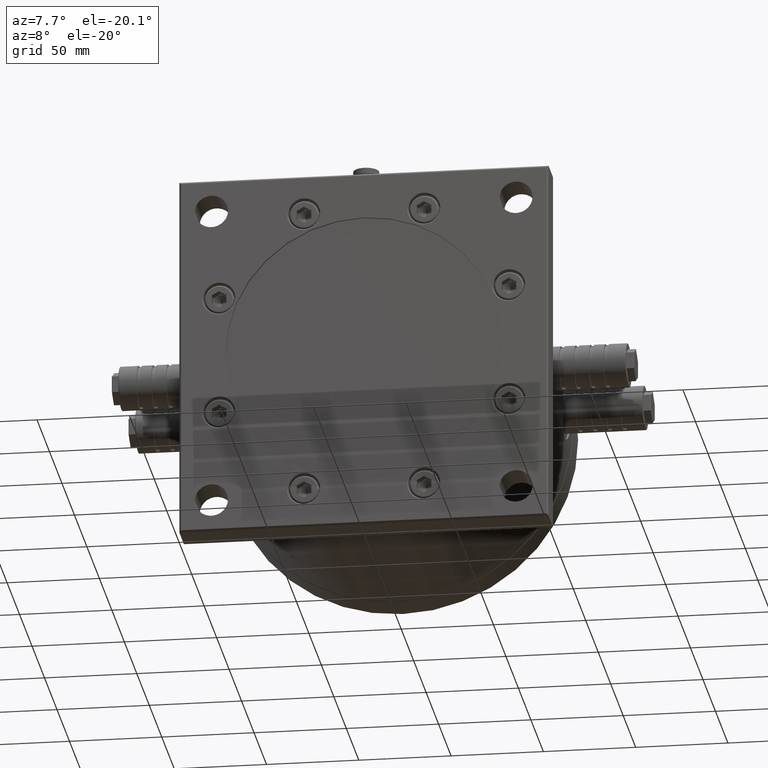
[diagram: clean part render]
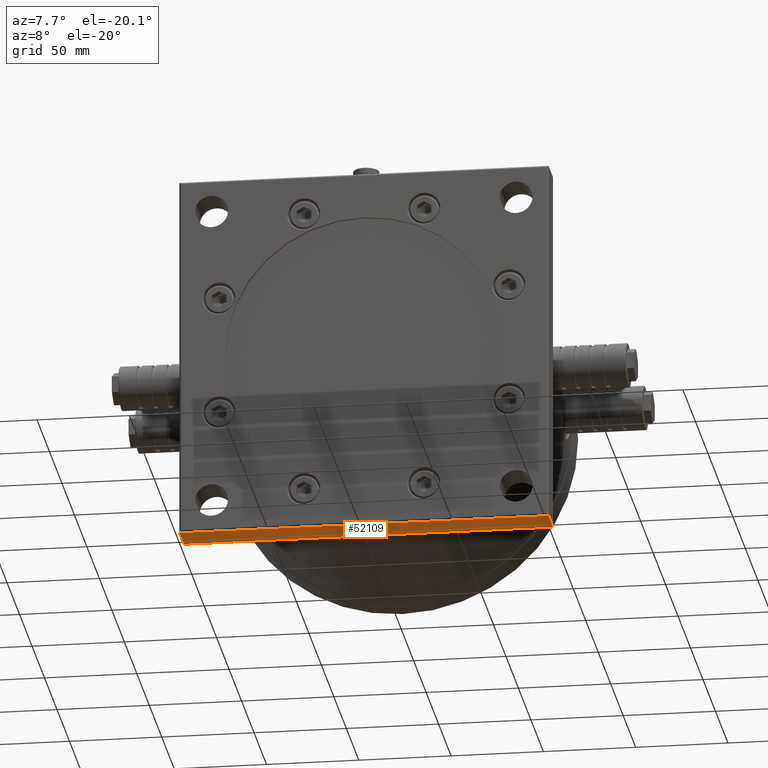
[diagram: same view with one face highlighted and labeled with its STEP entity id]
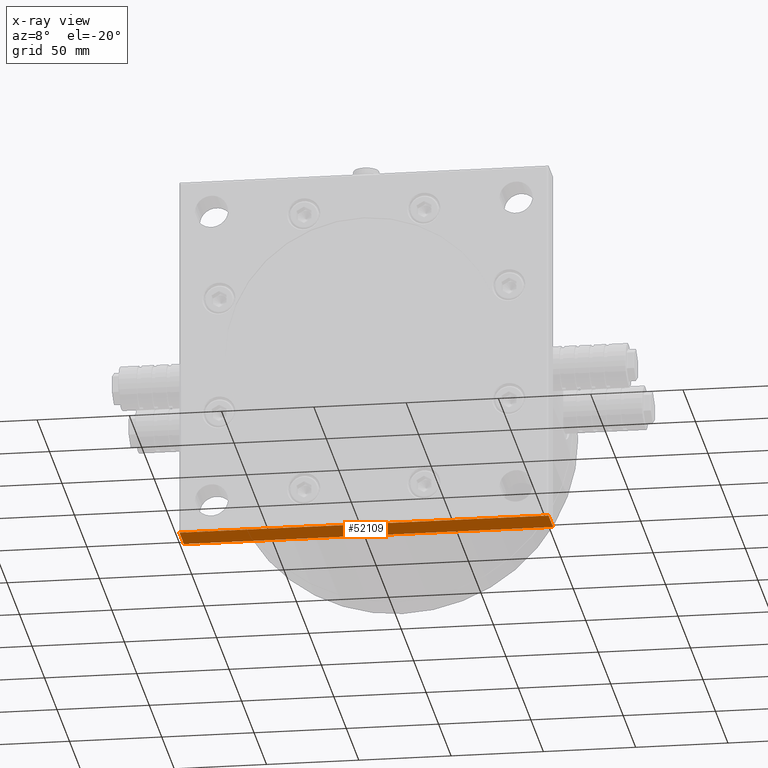
[diagram: x-ray of the same camera — body ghosted, the highlighted face saturated]
A machine part, auxiliary view. The second image highlights one B-rep face of the part: STEP entity #52109.
The next image is the same camera in x-ray: the body ghosted, the highlighted face saturated — about 0% of this face is hidden behind the body in this view.
In plain terms, the highlighted planar face has unit normal (0, -0, 1).
Its self-contained STEP definition (entity closure, byte-faithful):
#4768 = VERTEX_POINT ( 'NONE', #32484 ) ;
#5789 = EDGE_CURVE ( 'NONE', #18988, #19757, #60390, .T. ) ;
#8141 = EDGE_CURVE ( 'NONE', #4768, #13830, #9657, .T. ) ;
#8371 = CARTESIAN_POINT ( 'NONE',  ( -100.0000000000000000, 20.00000000000000000, -100.0000000000000000 ) ) ;
#9133 = EDGE_CURVE ( 'NONE', #18988, #13830, #44740, .T. ) ;
#9657 = LINE ( 'NONE', #26000, #11184 ) ;
#10149 = LINE ( 'NONE', #19590, #60716 ) ;
#11184 = VECTOR ( 'NONE', #16562, 1000.000000000000000 ) ;
#12169 = CARTESIAN_POINT ( 'NONE',  ( -100.0000000000000000, 19.00000000000000000, -100.0000000000000000 ) ) ;
#13830 = VERTEX_POINT ( 'NONE', #46685 ) ;
#15974 = FACE_OUTER_BOUND ( 'NONE', #31048, .T. ) ;
#16562 = DIRECTION ( 'NONE',  ( -1.000000000000000000, -8.946783215029119000E-019, 6.938957921433089400E-017 ) ) ;
#18988 = VERTEX_POINT ( 'NONE', #12169 ) ;
#19590 = CARTESIAN_POINT ( 'NONE',  ( 100.0000000000000000, 20.00000000000000000, -100.0000000000000000 ) ) ;
#19757 = VERTEX_POINT ( 'NONE', #34399 ) ;
#24126 = ORIENTED_EDGE ( 'NONE', *, *, #8141, .T. ) ;
#26000 = CARTESIAN_POINT ( 'NONE',  ( -100.0000000000000000, 1.000000000000000000, -100.0000000000000000 ) ) ;
#26546 = PLANE ( 'NONE',  #61351 ) ;
#31048 = EDGE_LOOP ( 'NONE', ( #36781, #24126, #39826, #46014 ) ) ;
#31744 = DIRECTION ( 'NONE',  ( 2.300880297921579900E-017, -1.000000000000000000, 0.0000000000000000000 ) ) ;
#32484 = CARTESIAN_POINT ( 'NONE',  ( 100.0000000000000000, 1.000000000000000000, -100.0000000000000000 ) ) ;
#33436 = DIRECTION ( 'NONE',  ( 1.000000000000000000, 8.946783215029119000E-019, -6.938957921433089400E-017 ) ) ;
#34399 = CARTESIAN_POINT ( 'NONE',  ( 100.0000000000000000, 19.00000000000000000, -100.0000000000000000 ) ) ;
#36672 = CARTESIAN_POINT ( 'NONE',  ( -100.0000000000000000, 20.00000000000000000, -100.0000000000000000 ) ) ;
#36781 = ORIENTED_EDGE ( 'NONE', *, *, #41625, .T. ) ;
#39826 = ORIENTED_EDGE ( 'NONE', *, *, #9133, .F. ) ;
#41625 = EDGE_CURVE ( 'NONE', #19757, #4768, #10149, .T. ) ;
#44740 = LINE ( 'NONE', #36672, #45546 ) ;
#45546 = VECTOR ( 'NONE', #31744, 1000.000000000000000 ) ;
#46014 = ORIENTED_EDGE ( 'NONE', *, *, #5789, .T. ) ;
#46685 = CARTESIAN_POINT ( 'NONE',  ( -100.0000000000000000, 1.000000000000000000, -100.0000000000000000 ) ) ;
#47393 = VECTOR ( 'NONE', #62939, 1000.000000000000000 ) ;
#52109 = ADVANCED_FACE ( 'NONE', ( #15974 ), #26546, .F. ) ;
#52722 = DIRECTION ( 'NONE',  ( 6.938957921433089400E-017, -6.234162491791649300E-017, 1.000000000000000000 ) ) ;
#57909 = DIRECTION ( 'NONE',  ( 2.300880297921579900E-017, -1.000000000000000000, 0.0000000000000000000 ) ) ;
#58613 = CARTESIAN_POINT ( 'NONE',  ( 100.0000000000000000, 19.00000000000000000, -100.0000000000000000 ) ) ;
#60390 = LINE ( 'NONE', #58613, #47393 ) ;
#60716 = VECTOR ( 'NONE', #57909, 1000.000000000000000 ) ;
#61351 = AXIS2_PLACEMENT_3D ( 'NONE', #8371, #52722, #33436 ) ;
#62939 = DIRECTION ( 'NONE',  ( 1.000000000000000000, 8.946783215029119000E-019, -6.938957921433089400E-017 ) ) ;